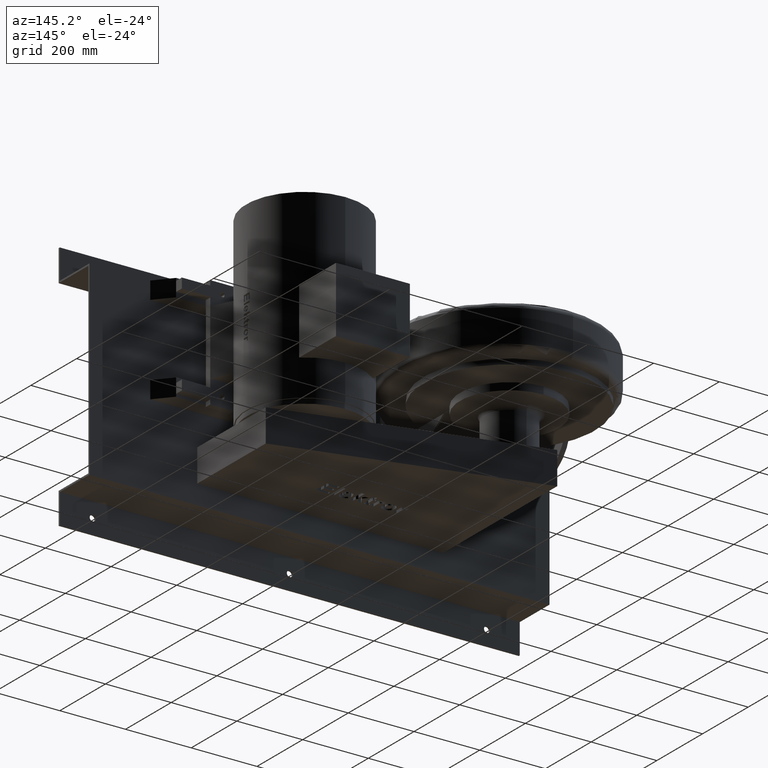
[diagram: clean part render]
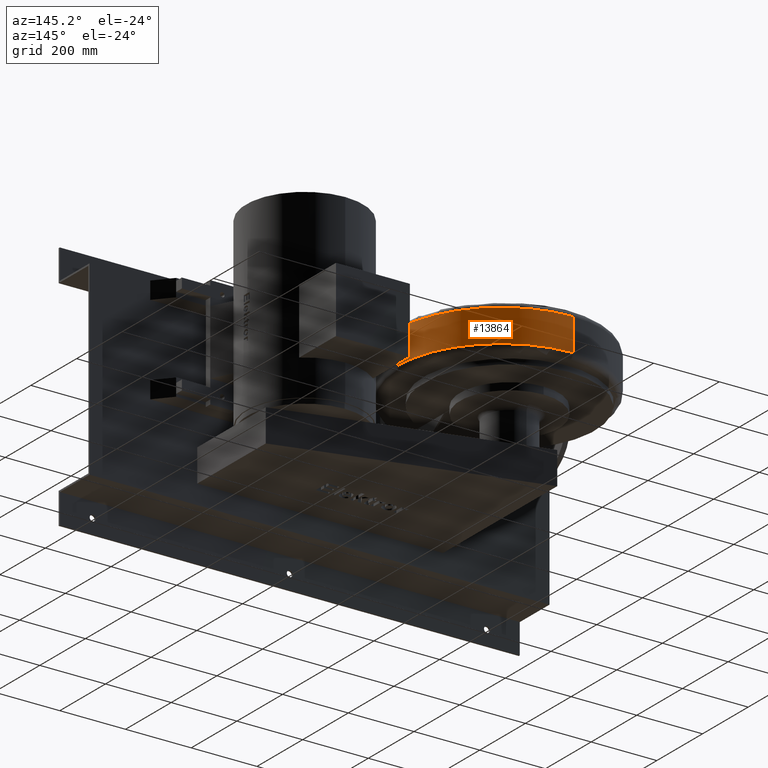
[diagram: same view with one face highlighted and labeled with its STEP entity id]
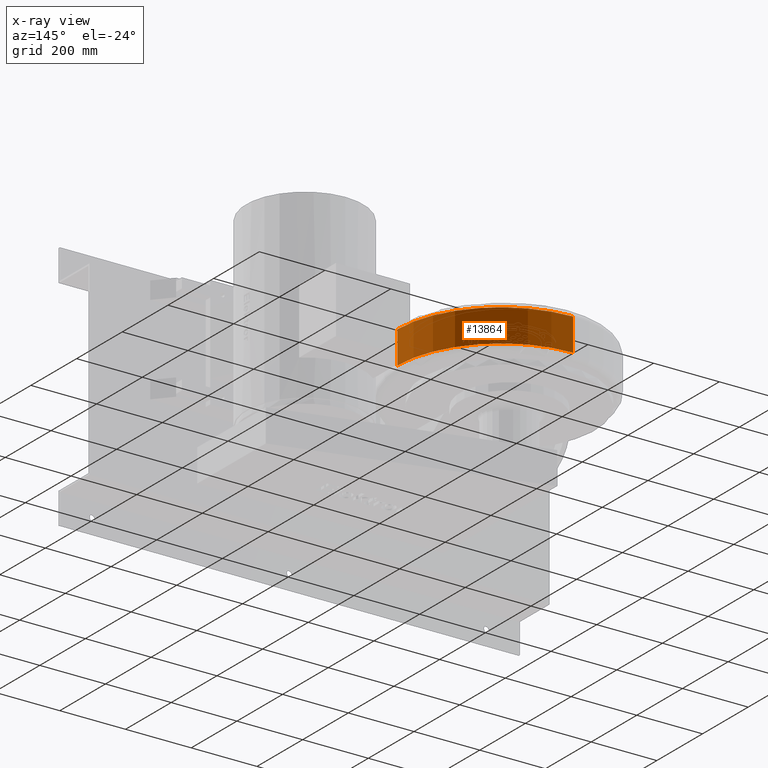
[diagram: x-ray of the same camera — body ghosted, the highlighted face saturated]
A machine part, auxiliary view. The second image highlights one B-rep face of the part: STEP entity #13864.
The next image is the same camera in x-ray: the body ghosted, the highlighted face saturated — about 0% of this face is hidden behind the body in this view.
In plain terms, the highlighted cylindrical surface (partial cylindrical patch) has radius 315 mm, axis along (-0, 0, 1).
Its self-contained STEP definition (entity closure, byte-faithful):
#13652=CARTESIAN_POINT('',(345.00000000000006,-1.326050E-013,49.499999999999964));
#13653=VERTEX_POINT('',#13652);
#13686=CARTESIAN_POINT('',(30.000000000000053,314.99999999999989,49.499999999999893));
#13687=VERTEX_POINT('',#13686);
#13688=CARTESIAN_POINT('',(30.000000000000053,-1.326050E-013,49.499999999999964));
#13689=DIRECTION('',(1.184238E-016,1.184238E-016,1.0));
#13690=DIRECTION('',(0.707106781186548,0.707106781186547,-1.674765E-016));
#13691=AXIS2_PLACEMENT_3D('',#13688,#13689,#13690);
#13692=CIRCLE('',#13691,315.0);
#13693=EDGE_CURVE('',#13653,#13687,#13692,.T.);
#13815=CARTESIAN_POINT('',(30.000000000000053,314.99999999999989,-49.500000000000107));
#13816=VERTEX_POINT('',#13815);
#13831=CARTESIAN_POINT('',(30.000000000000053,314.99999999999989,-49.500000000000107));
#13832=DIRECTION('',(0.0,0.0,1.0));
#13833=VECTOR('',#13832,99.0);
#13834=LINE('',#13831,#13833);
#13835=EDGE_CURVE('',#13816,#13687,#13834,.T.);
#13840=CARTESIAN_POINT('',(30.000000000000053,-1.443290E-013,-3.187976E-014));
#13841=DIRECTION('',(-6.833984E-031,2.368476E-016,1.0));
#13842=DIRECTION('',(1.0,0.0,0.0));
#13843=AXIS2_PLACEMENT_3D('',#13840,#13841,#13842);
#13844=CYLINDRICAL_SURFACE('',#13843,315.0);
#13845=CARTESIAN_POINT('',(345.00000000000006,-1.560529E-013,-49.500000000000036));
#13846=VERTEX_POINT('',#13845);
#13847=CARTESIAN_POINT('',(30.000000000000053,-1.560529E-013,-49.500000000000036));
#13848=DIRECTION('',(-1.184238E-016,-1.184238E-016,-1.0));
#13849=DIRECTION('',(0.707106781186548,0.707106781186547,-1.674765E-016));
#13850=AXIS2_PLACEMENT_3D('',#13847,#13848,#13849);
#13851=CIRCLE('',#13850,315.0);
#13852=EDGE_CURVE('',#13816,#13846,#13851,.T.);
#13853=ORIENTED_EDGE('',*,*,#13852,.F.);
#13854=ORIENTED_EDGE('',*,*,#13835,.T.);
#13855=ORIENTED_EDGE('',*,*,#13693,.F.);
#13856=CARTESIAN_POINT('',(345.00000000000006,-1.326050E-013,49.499999999999972));
#13857=DIRECTION('',(0.0,0.0,-1.0));
#13858=VECTOR('',#13857,99.0);
#13859=LINE('',#13856,#13858);
#13860=EDGE_CURVE('',#13653,#13846,#13859,.T.);
#13861=ORIENTED_EDGE('',*,*,#13860,.T.);
#13862=EDGE_LOOP('',(#13853,#13854,#13855,#13861));
#13863=FACE_OUTER_BOUND('',#13862,.T.);
#13864=ADVANCED_FACE('',(#13863),#13844,.T.);